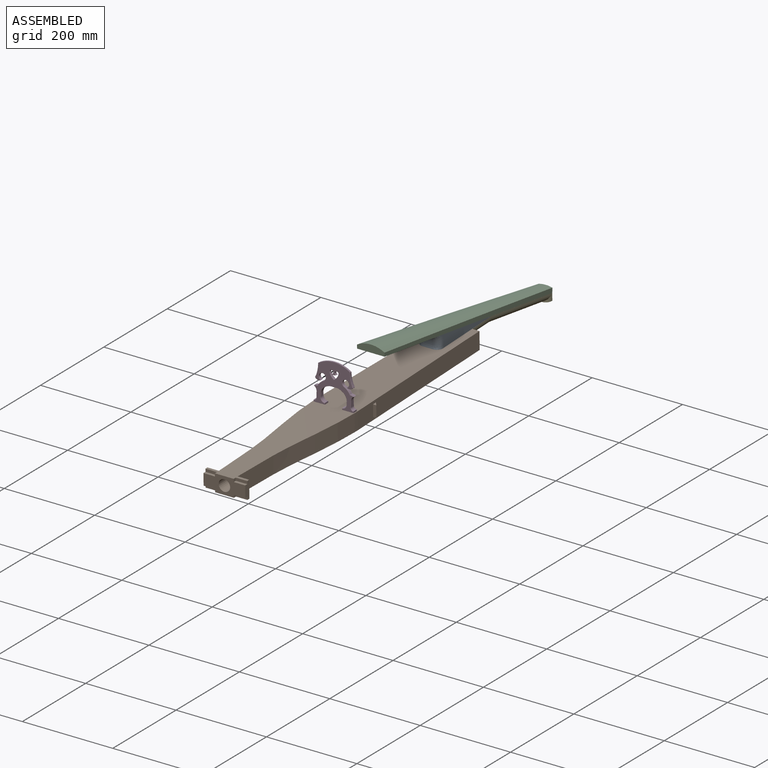
[diagram: assembled view]
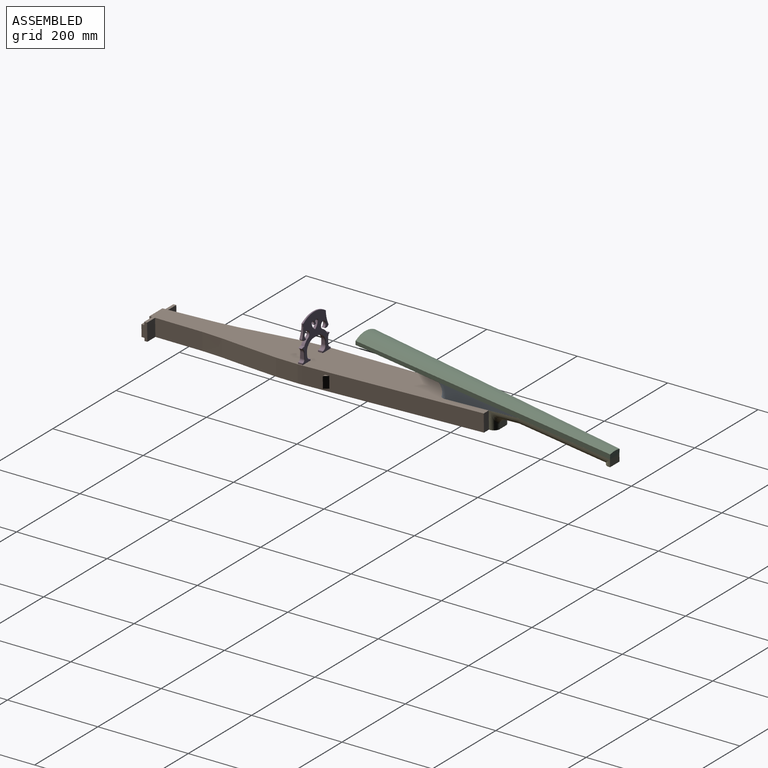
[diagram: assembled view, second angle]
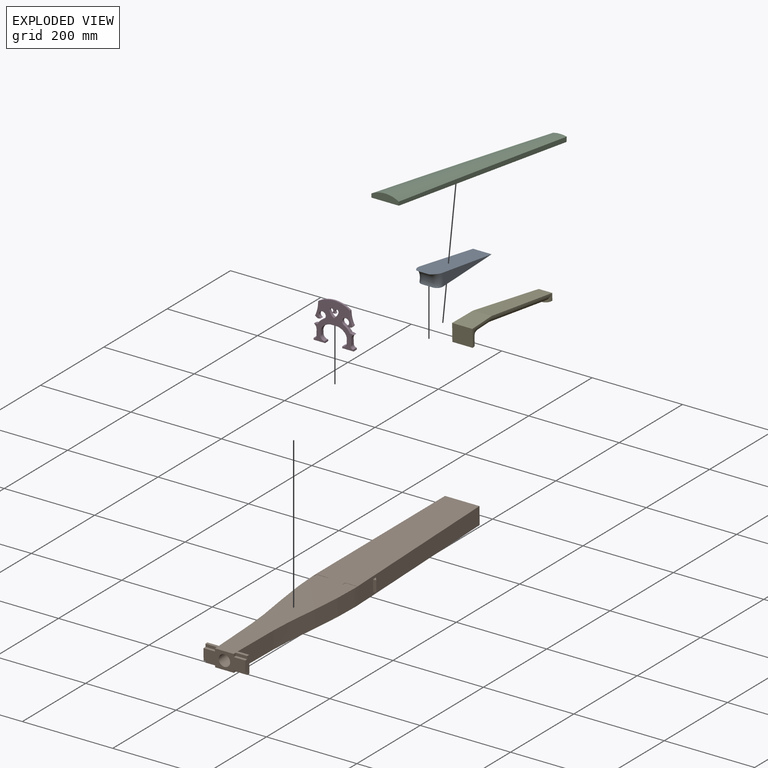
[diagram: exploded view]
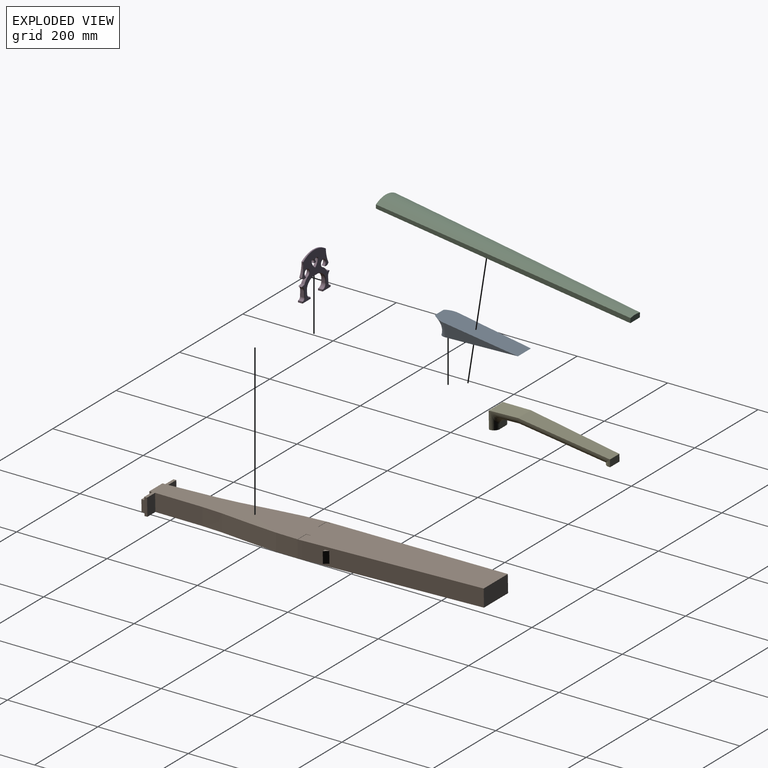
[diagram: exploded view, second angle]
ASSEMBLY  parts=5 mates=4
PART A: 7 faces, bbox 51.7x52.7x189.6 mm
  f0: plane 189.64x51.61mm, normal (-0.98,0,0.17), area 8567.6mm2, adj f1,f2,f3,f4,f5,f6
  f1: cylinder r=25.4mm len=33.08mm, axis (0,1,0), area 989.8mm2, adj f0,f2,f5,f6
  f2: plane 172.72x49.1mm, normal (1,0,0), area 7771.2mm2, adj f0,f1,f3,f4,f5,f6
  f3: plane 163.4x28.81mm, normal (0,-1,0.03), area 2235.9mm2, adj f0,f2,f6
  f4: plane 163.4x28.81mm, normal (0,1,0.03), area 2235.9mm2, adj f0,f2,f5
  f5: bspline ~49.62x29.64mm, area 707.5mm2, adj f0,f1,f2,f4
  f6: bspline ~49.62x29.64mm, area 707.5mm2, adj f0,f1,f2,f3
PART B: 52 faces, bbox 104.4x751.8x38.1 mm
  f0: plane 9.51x7.23mm, normal (0,0,1), area 33.4mm2, adj f2,f50,f51
  f1: plane 9.51x7.23mm, normal (0,0,-1), area 33.4mm2, adj f2,f50,f51
  f2: plane 396.66x38.1mm, normal (1,0.02,0), area 14874.3mm2, adj f0,f1,f3,f5,f6,f7,f23,f50
  f3: plane 751.81x92.38mm, normal (0,0,1), area 55855.2mm2, adj f2,f6,f8,f9,f10,f18,f19,f21
  f4: plane 37.85x9.53mm, normal (-1,0,0), area 360.5mm2, adj f7,f26,f41,f43
  f5: plane 37.85x9.53mm, normal (1,0,0), area 360.5mm2, adj f2,f7,f24,f37
  f6: plane 76.2x38.1mm, normal (0,1,0), area 2903.2mm2, adj f2,f3,f7,f43
  f7: plane 751.81x92.38mm, normal (0,0,-1), area 56339.5mm2, adj f2,f4,f5,f6,f8,f9,f10,f11
  f8: plane 38.1x12.7mm, normal (-1,0,0), area 403.2mm2, adj f3,f7,f9,f15,f16,f17,f19,f42
  f9: plane 92.38x38.1mm, normal (0,-1,0), area 2367.8mm2, adj f3,f7,f8,f10,f11,f12,f14,f15
  f10: plane 38.1x12.7mm, normal (1,0,0), area 403.2mm2, adj f3,f7,f9,f12,f13,f20,f22,f39
  f11: plane 6.35x6.35mm, normal (1,0,0), area 40.3mm2, adj f7,f9,f12,f13
  f12: plane 25.4x6.35mm, normal (0,0,-1), area 161.3mm2, adj f9,f10,f11,f13
  f13: plane 25.4x6.35mm, normal (0,-1,0), area 161.3mm2, adj f7,f10,f11,f12
  f14: plane 6.35x6.35mm, normal (-1,0,0), area 40.3mm2, adj f7,f9,f15,f16
  f15: plane 25.4x6.35mm, normal (0,0,-1), area 161.3mm2, adj f8,f9,f14,f16
  f16: plane 25.4x6.35mm, normal (0,-1,0), area 161.3mm2, adj f7,f8,f14,f15
  f17: plane 25.4x6.35mm, normal (0,0,1), area 161.3mm2, adj f8,f9,f18,f19
  f18: plane 6.35x6.35mm, normal (-1,0,0), area 40.3mm2, adj f3,f9,f17,f19
  f19: plane 25.4x6.35mm, normal (0,-1,0), area 161.3mm2, adj f3,f8,f17,f18
  f20: plane 25.4x6.35mm, normal (0,0,1), area 161.3mm2, adj f9,f10,f21,f22
  f21: plane 6.35x6.35mm, normal (1,0,0), area 40.3mm2, adj f3,f9,f20,f22
  f22: plane 25.4x6.35mm, normal (0,-1,0), area 161.3mm2, adj f3,f10,f20,f21
  f23: extruded ~9.53x0.25mm, area 2.4mm2, adj f2,f3,f24,f38
  f24: plane 9.53x0.07mm, normal (0,0,1), area 0.2mm2, adj f5,f23,f37
  f25: extruded ~9.53x0.25mm, area 2.4mm2, adj f3,f26,f40,f43
  f26: plane 9.53x0.07mm, normal (0,0,1), area 0.2mm2, adj f4,f25,f41
  f27: plane 25.4x0.51mm, normal (0,-1,0), area 12.9mm2, adj f3,f28,f30,f31
  f28: plane 9.53x0.51mm, normal (1,0,0), area 4.8mm2, adj f3,f27,f29,f31
  f29: plane 25.4x0.51mm, normal (0,1,0), area 12.9mm2, adj f3,f28,f30,f31
  f30: plane 9.53x0.51mm, normal (-1,0,0), area 4.8mm2, adj f3,f27,f29,f31
  f31: plane 25.4x9.53mm, normal (0,0,1), area 241.9mm2, adj f27,f28,f29,f30
  f32: plane 25.4x0.51mm, normal (0,-1,0), area 12.9mm2, adj f3,f33,f35,f36
  f33: plane 9.53x0.51mm, normal (1,0,0), area 4.8mm2, adj f3,f32,f34,f36
  f34: plane 25.4x0.51mm, normal (0,1,0), area 12.9mm2, adj f3,f33,f35,f36
  f35: plane 9.53x0.51mm, normal (-1,0,0), area 4.8mm2, adj f3,f32,f34,f36
  f36: plane 25.4x9.53mm, normal (0,0,1), area 241.9mm2, adj f32,f33,f34,f35
  f37: plane 37.85x0.07mm, normal (0,-1,0), area 2.7mm2, adj f5,f7,f24,f38
  f38: extruded ~332.93x38.1mm, area 12730.9mm2, adj f3,f7,f23,f37,f39
  f39: plane 38.1x25.4mm, normal (0,1,0), area 967.7mm2, adj f3,f7,f10,f38
  f40: extruded ~332.93x38.1mm, area 12730.9mm2, adj f3,f7,f25,f41,f42
  f41: plane 37.85x0.07mm, normal (0,-1,0), area 2.7mm2, adj f4,f7,f26,f40
  f42: plane 38.1x25.4mm, normal (0,1,0), area 967.7mm2, adj f3,f7,f8,f40
  f43: plane 396.66x38.1mm, normal (-1,0.02,0), area 14874.3mm2, adj f3,f4,f6,f7,f25,f44,f45,f46
  f44: plane 9.51x7.23mm, normal (0,0,1), area 33.4mm2, adj f43,f46,f47
  f45: plane 9.51x7.23mm, normal (0,0,-1), area 33.4mm2, adj f43,f46,f47
  f46: plane 25.4x7.03mm, normal (-0.02,-1,0), area 178.7mm2, adj f43,f44,f45,f47
  f47: plane 25.4x9.36mm, normal (-0.79,0.61,0), area 300.4mm2, adj f43,f44,f45,f46
  f48: cylinder r=12.7mm len=381mm, axis (0,-1,0), area 30402.4mm2, adj f9,f49
  f49: plane 25.4x25.4mm, normal (0,-1,0), area 506.7mm2, adj f48
  f50: plane 25.4x7.03mm, normal (0.02,-1,0), area 178.7mm2, adj f0,f1,f2,f51
  f51: plane 25.4x9.36mm, normal (0.79,0.61,0), area 300.4mm2, adj f0,f1,f2,f50
PART C: 6 faces, bbox 103.7x554.1x60.9 mm
  f0: plane 29.92x12.12mm, normal (0.05,1,0), area 344.4mm2, adj f1,f2,f4,f5
  f1: plane 551.92x87.42mm, normal (0.99,-0.16,0), area 25334.2mm2, adj f0,f2,f3,f5
  f2: plane 552.47x95.57mm, normal (0,0.03,-1), area 5338.7mm2, adj f0,f1,f3,f4
  f3: plane 60.89x16.31mm, normal (0,-1,0), area 831.6mm2, adj f1,f2,f4,f5
  f4: cylinder r=61.63mm len=554.09mm, axis (0.16,0.99,0), area 26128.8mm2, adj f0,f2,f3,f5
  f5: plane 552.47x95.57mm, normal (0,0.03,1), area 5338.7mm2, adj f0,f1,f3,f4
PART D: 127 faces, bbox 88.8x89.7x11.1 mm
  f0: plane 88.21x87.07mm, normal (0,0.04,-1), area 3511.7mm2, adj f4,f5,f6,f28,f30,f59,f60,f61
  f1: cylinder r=0.76mm len=12.55mm, axis (0,1,-0.04), area 15mm2, adj f22,f27,f37,f107
  f2: cylinder r=0.76mm len=3.87mm, axis (0,-1,0.04), area 3.9mm2, adj f3,f26,f27,f47,f48,f57
  f3: cylinder r=5.82mm len=9.32mm, axis (0,0,-1), area 86.4mm2, adj f2,f4,f26,f48,f57,f60,f93
  f4: bspline ~6.97x6.58mm, area 11.2mm2, adj f0,f3,f60,f70
  f5: bspline ~12.13x5.24mm, area 15.6mm2, adj f0,f33,f88,f89
  f6: bspline ~20.36x9.59mm, area 27.6mm2, adj f0,f35,f86,f87
  f7: bspline ~10.23x10.23mm, area 17.9mm2, adj f27,f31,f41,f77,f113
  f8: bspline ~0.62x0.36mm, area 0.1mm2, adj f29,f37,f115
  f9: bspline ~13.47x10.6mm, area 19.6mm2, adj f27,f38,f40,f108
  f10: bspline ~4.92x2.15mm, area 5.5mm2, adj f27,f38,f39,f109,f110
  f11: bspline ~9.06x8.92mm, area 22mm2, adj f27,f39,f40,f111
  f12: bspline ~12.13x5.24mm, area 15.6mm2, adj f27,f36,f41,f42
  f13: bspline ~20.36x9.59mm, area 27.6mm2, adj f27,f34,f43,f44
  f14: bspline ~10.23x10.23mm, area 17.9mm2, adj f23,f27,f45,f46,f92
  f15: bspline ~10.78x7mm, area 14.8mm2, adj f27,f49,f50,f94,f95
  f16: bspline ~13.84x13.51mm, area 21.8mm2, adj f27,f50,f51,f95,f96
  f17: bspline ~5.67x2.47mm, area 6.6mm2, adj f27,f51,f52,f97,f98
  f18: bspline ~30.05x6.95mm, area 36.3mm2, adj f27,f52,f53,f99,f100
  f19: bspline ~30.4x7.09mm, area 36.3mm2, adj f27,f53,f54,f100,f101
  f20: bspline ~5.67x2.47mm, area 6.6mm2, adj f27,f54,f55,f102,f103
  f21: bspline ~13.84x13.51mm, area 21.8mm2, adj f27,f55,f56,f104,f105
  f22: bspline ~10.78x7mm, area 14.8mm2, adj f1,f27,f56,f105,f106
  f23: bspline ~0.61x0.35mm, area 0.1mm2, adj f14,f46,f92
  f24: plane 25.28x9.52mm, normal (0,-1,0), area 240.7mm2, adj f25,f26,f47,f59
  f25: plane 9.59x3.8mm, normal (1,0,0), area 35.8mm2, adj f24,f46,f47,f59,f91,f92
  f26: plane 9.59x3.84mm, normal (-1,0,0), area 36.2mm2, adj f2,f3,f24,f47,f59,f60
  f27: plane 88.21x87.07mm, normal (0,0.04,1), area 3511.5mm2, adj f1,f2,f7,f9,f10,f11,f12,f13
  f28: cylinder r=0.76mm len=3.87mm, axis (0,-1,-0.04), area 3.9mm2, adj f0,f29,f72,f74,f75
  f29: cylinder r=5.82mm len=9.32mm, axis (0,0,-1), area 86.4mm2, adj f8,f28,f37,f74,f75,f107,f115
  f30: cylinder r=0.76mm len=6.3mm, axis (0,1,0.04), area 7.5mm2, adj f0,f86,f114,f116
  f31: cylinder r=0.76mm len=3.84mm, axis (0,-1,0.04), area 3.9mm2, adj f7,f27,f76,f77,f113,f118
  f32: plane 8.41x6.26mm, normal (1,0,0), area 51mm2, adj f33,f45,f89,f92
  f33: cylinder r=17.27mm len=11.58mm, axis (0,0,-1), area 93mm2, adj f5,f32,f34,f44
  f34: cylinder r=26.69mm len=19.8mm, axis (0,0,-1), area 142.5mm2, adj f13,f33,f58,f88
  f35: cylinder r=26.69mm len=19.8mm, axis (0,0,-1), area 142.5mm2, adj f6,f36,f42,f58
  f36: cylinder r=17.27mm len=11.58mm, axis (0,0,-1), area 93mm2, adj f12,f35,f86,f114
  f37: bspline ~6.58x6.58mm, area 11.2mm2, adj f1,f8,f27,f29,f115
  f38: bspline ~9.06x8.92mm, area 22mm2, adj f9,f10,f27,f109
  f39: bspline ~4.92x2.15mm, area 5.5mm2, adj f10,f11,f27,f110,f111
  f40: bspline ~13.47x10.6mm, area 19.6mm2, adj f9,f11,f27,f112
  f41: cylinder r=0.76mm len=6.3mm, axis (0,-1,0.04), area 7.5mm2, adj f7,f12,f27,f114
  f42: bspline ~20.36x9.59mm, area 27.6mm2, adj f12,f27,f35,f43
  f43: cylinder r=0.76mm len=9.1mm, axis (1,0,0), area 11.2mm2, adj f13,f27,f42,f58
  f44: bspline ~12.13x5.24mm, area 15.6mm2, adj f13,f27,f33,f45
  f45: cylinder r=0.76mm len=6.3mm, axis (0,1,-0.04), area 7.5mm2, adj f14,f27,f32,f44
  f46: cylinder r=0.76mm len=3.84mm, axis (0,1,-0.04), area 3.9mm2, adj f14,f23,f25,f27,f47,f92
  f47: cylinder r=0.76mm len=25.28mm, axis (-1,0,0), area 30.5mm2, adj f2,f24,f25,f26,f27,f46
  f48: bspline ~6.58x6.58mm, area 11.2mm2, adj f2,f3,f27,f49,f57
  f49: cylinder r=0.76mm len=12.55mm, axis (0,-1,0.04), area 15mm2, adj f15,f27,f48,f93
  f50: bspline ~8.99x2.68mm, area 9.5mm2, adj f15,f16,f27,f95
  f51: bspline ~16.28x15.86mm, area 49.6mm2, adj f16,f17,f27,f97
  f52: bspline ~8.03x4.64mm, area 10.9mm2, adj f17,f18,f27,f98,f99
  f53: bspline ~71.8x11.74mm, area 88.1mm2, adj f18,f19,f27,f100
  f54: bspline ~7.98x4.59mm, area 10.9mm2, adj f19,f20,f27,f101,f102
  f55: bspline ~16.28x15.86mm, area 49.6mm2, adj f20,f21,f27,f103
  f56: bspline ~8.99x2.68mm, area 9.5mm2, adj f21,f22,f27,f105
  f57: bspline ~0.62x0.36mm, area 0.1mm2, adj f2,f3,f48
  f58: plane 9.1x5.99mm, normal (0,-1,0), area 54.5mm2, adj f34,f35,f43,f87
  f59: cylinder r=0.76mm len=25.28mm, axis (-1,0,0), area 30.5mm2, adj f0,f24,f25,f26,f60,f91
  f60: cylinder r=0.76mm len=3.87mm, axis (0,1,0.04), area 3.9mm2, adj f0,f3,f4,f26,f59
  f61: bspline ~10.78x7mm, area 14.8mm2, adj f0,f85,f105,f106,f119
  f62: bspline ~1.06x0.76mm, area 0.9mm2, adj f0,f105,f119,f120
  f63: bspline ~15.47x8.14mm, area 24.8mm2, adj f0,f103,f120,f121
  f64: bspline ~13.81x4.68mm, area 17.5mm2, adj f0,f101,f102,f103,f121,f122
  f65: bspline ~35.9x11.74mm, area 44mm2, adj f0,f100,f122,f123
  f66: bspline ~30.05x6.95mm, area 36.3mm2, adj f0,f99,f100,f123,f124
  f67: bspline ~15.8x8.13mm, area 24.8mm2, adj f0,f97,f124,f125
  f68: bspline ~13.84x13.51mm, area 21.8mm2, adj f0,f95,f96,f125,f126
  f69: bspline ~7.88x2.67mm, area 8.5mm2, adj f0,f71,f95,f126
  f70: cylinder r=0.76mm len=12.55mm, axis (0,1,0.04), area 15mm2, adj f0,f4,f71,f93
  f71: bspline ~10.78x7mm, area 14.8mm2, adj f0,f69,f70,f94,f95
  f72: cylinder r=0.76mm len=25.28mm, axis (-1,0,0), area 30.5mm2, adj f0,f28,f73,f74,f117,f118
  f73: cylinder r=0.76mm len=3.84mm, axis (0,1,0.04), area 3.9mm2, adj f0,f72,f77,f116,f118
  f74: plane 9.59x3.84mm, normal (1,0,0), area 36.2mm2, adj f28,f29,f72,f76,f115,f117
  f75: bspline ~6.97x6.58mm, area 11.2mm2, adj f0,f28,f29,f85
  f76: cylinder r=0.76mm len=25.28mm, axis (-1,0,0), area 30.5mm2, adj f27,f31,f74,f115,f117,f118
  f77: cylinder r=9.46mm len=9.8mm, axis (0,0,-1), area 136.7mm2, adj f7,f31,f73,f113,f114,f116,f118
  f78: bspline ~13.47x10.6mm, area 19.6mm2, adj f0,f79,f84,f112
  f79: bspline ~5.68x4.52mm, area 9mm2, adj f0,f78,f80,f111
  f80: bspline ~8.89x4.52mm, area 13mm2, adj f0,f79,f81,f111
  f81: bspline ~9.75x2.13mm, area 11mm2, adj f0,f80,f82,f109,f110,f111
  f82: bspline ~8.87x4.52mm, area 13mm2, adj f0,f81,f83,f109
  f83: bspline ~5.68x4.52mm, area 9mm2, adj f0,f82,f84,f109
  f84: bspline ~13.55x10.68mm, area 19.6mm2, adj f0,f78,f83,f108
  f85: cylinder r=0.76mm len=12.55mm, axis (0,-1,-0.04), area 15mm2, adj f0,f61,f75,f107
  f86: bspline ~12.13x5.24mm, area 15.6mm2, adj f0,f6,f30,f36
  f87: cylinder r=0.76mm len=9.1mm, axis (-1,0,0), area 11.2mm2, adj f0,f6,f58,f88
  f88: bspline ~20.36x9.59mm, area 27.6mm2, adj f0,f5,f34,f87
  f89: cylinder r=0.76mm len=6.3mm, axis (0,-1,-0.04), area 7.5mm2, adj f0,f5,f32,f90
  f90: bspline ~10.58x10.23mm, area 18mm2, adj f0,f89,f91,f92
  f91: cylinder r=0.76mm len=3.84mm, axis (0,-1,-0.04), area 3.9mm2, adj f0,f25,f59,f90,f92
  f92: cylinder r=9.46mm len=9.8mm, axis (0,0,-1), area 136.7mm2, adj f14,f23,f25,f32,f46,f90,f91
  f93: plane 12.52x8.73mm, normal (-1,0,0), area 102.4mm2, adj f3,f49,f70,f94
  f94: cylinder r=11.25mm len=10.04mm, axis (0,0,-1), area 88.6mm2, adj f15,f71,f93,f95
  f95: cylinder r=16.27mm len=8.39mm, axis (0,0,-1), area 58.3mm2, adj f15,f16,f50,f68,f69,f71,f94,f96
  f96: cylinder r=29.09mm len=13.23mm, axis (0,0,-1), area 112.6mm2, adj f16,f68,f95,f97
  f97: cylinder r=7.37mm len=14.73mm, axis (0,0,-1), area 192.1mm2, adj f17,f51,f67,f96,f98,f124,f125
  f98: cylinder r=9.79mm len=13.65mm, axis (0,0,-1), area 82.6mm2, adj f17,f52,f97,f99,f124
  f99: cylinder r=61.09mm len=29.68mm, axis (0,0,-1), area 121.7mm2, adj f18,f52,f66,f98,f100,f124
  f100: cylinder r=63.37mm len=71.8mm, axis (0,0,-1), area 156.2mm2, adj f18,f19,f53,f65,f66,f99,f101,f122
  f101: cylinder r=61.09mm len=29.68mm, axis (0,0,-1), area 122mm2, adj f19,f54,f64,f100,f102,f122
  f102: cylinder r=9.79mm len=13.65mm, axis (0,0,-1), area 82.6mm2, adj f20,f54,f64,f101,f103
  f103: cylinder r=7.37mm len=14.73mm, axis (0,0,-1), area 192.1mm2, adj f20,f55,f63,f64,f102,f104,f121
  f104: cylinder r=29.09mm len=13.23mm, axis (0,0,-1), area 112.6mm2, adj f21,f103,f105,f120
  f105: cylinder r=16.27mm len=8.39mm, axis (0,0,-1), area 58.3mm2, adj f21,f22,f56,f61,f62,f104,f106,f119
  f106: cylinder r=11.25mm len=10.04mm, axis (0,0,-1), area 88.6mm2, adj f22,f61,f105,f107
  f107: plane 12.52x8.73mm, normal (1,0,0), area 102.4mm2, adj f1,f29,f85,f106
  f108: cylinder r=21.04mm len=12.62mm, axis (0,0,-1), area 67.9mm2, adj f9,f84,f109,f112
  f109: cylinder r=3.75mm len=7.51mm, axis (0,0,-1), area 60.3mm2, adj f10,f38,f81,f82,f83,f108,f110
  f110: cylinder r=8.88mm len=9.75mm, axis (0,0,-1), area 39.4mm2, adj f10,f39,f81,f109,f111
  f111: cylinder r=3.75mm len=7.51mm, axis (0,0,-1), area 60.3mm2, adj f11,f39,f79,f80,f81,f110,f112
  f112: cylinder r=21.04mm len=12.62mm, axis (0,0,-1), area 67.9mm2, adj f40,f78,f108,f111
  f113: bspline ~0.61x0.35mm, area 0.1mm2, adj f7,f31,f77
  f114: plane 8.41x6.26mm, normal (-1,0,0), area 51mm2, adj f30,f36,f41,f77
  f115: cylinder r=0.76mm len=3.87mm, axis (0,1,-0.04), area 3.9mm2, adj f8,f27,f29,f37,f74,f76
  f116: bspline ~10.58x10.23mm, area 18mm2, adj f0,f30,f73,f77
  f117: plane 25.28x9.52mm, normal (0,-1,0), area 240.7mm2, adj f72,f74,f76,f118
  f118: plane 9.59x3.8mm, normal (-1,0,0), area 35.8mm2, adj f31,f72,f73,f76,f77,f117
  f119: bspline ~7.88x2.67mm, area 8.5mm2, adj f0,f61,f62,f105
  f120: bspline ~13.84x13.51mm, area 21.8mm2, adj f0,f62,f63,f104,f105
  f121: bspline ~15.8x8.13mm, area 24.8mm2, adj f0,f63,f64,f103
  f122: bspline ~30.05x6.95mm, area 36.3mm2, adj f0,f64,f65,f100,f101
  f123: bspline ~35.9x11.74mm, area 44mm2, adj f0,f65,f66,f100
  f124: bspline ~13.81x4.68mm, area 17.6mm2, adj f0,f66,f67,f97,f98,f99
  f125: bspline ~15.47x8.14mm, area 24.8mm2, adj f0,f67,f68,f97
  f126: bspline ~1.06x0.76mm, area 0.9mm2, adj f0,f68,f69,f95
PART E: 54 faces, bbox 50.9x45.2x263 mm
  f0: plane 1.3x0.23mm, normal (0.17,0,0.98), area 0.1mm2, adj f2,f8,f26,f53
  f1: plane 185.11x32.64mm, normal (0.98,0,-0.17), area 1984.5mm2, adj f2,f4,f5,f38,f49,f51,f52,f53
  f2: cylinder r=12.62mm len=197.79mm, axis (0.17,-0.03,0.98), area 3807.2mm2, adj f0,f1,f8,f48,f53
  f3: plane 1.75x0.13mm, normal (0,0,1), area 0mm2, adj f5,f8,f29,f48
  f4: plane 34.23x17.72mm, normal (1,0,0), area 573.4mm2, adj f1,f5,f38,f42
  f5: cylinder r=12.7mm len=58.77mm, axis (0,-0.03,1), area 854.8mm2, adj f1,f3,f4,f20,f28,f29,f40,f41
  f6: plane 29.87x15.24mm, normal (1,0,0), area 386mm2, adj f7,f23,f27,f51,f52,f53
  f7: plane 29.87x15.39mm, normal (0,0,1), area 459.8mm2, adj f6,f12,f23,f27
  f8: plane 199.46x37.3mm, normal (0,1,0.03), area 523.3mm2, adj f0,f2,f3,f11,f12,f25,f26,f29
  f9: plane 199.46x37.3mm, normal (0,-1,0.03), area 523.3mm2, adj f12,f17,f22,f24,f30,f47,f49,f50
  f10: plane 63.5x44.7mm, normal (-1,0,0), area 2725mm2, adj f12,f15,f18,f20
  f11: plane 2.54x0.45mm, normal (0.17,0,0.98), area 0mm2, adj f8,f20,f28
  f12: plane 199.01x41.12mm, normal (-0.98,0,0.17), area 7173.2mm2, adj f7,f8,f9,f10
  f13: plane 25.4x2.54mm, normal (0,-1,0), area 64.5mm2, adj f15,f16,f19,f39
  f14: plane 25.4x2.54mm, normal (0,1,0), area 64.5mm2, adj f15,f16,f21,f37
  f15: plane 44.7x38.1mm, normal (0,0,-1), area 1703.2mm2, adj f10,f13,f14,f16,f18,f20
  f16: plane 44.7x15.24mm, normal (1,0,0), area 612.1mm2, adj f13,f14,f15,f36,f37,f39
  f17: plane 2.54x0.45mm, normal (0.17,0,0.98), area 0mm2, adj f9,f18,f31
  f18: plane 63.96x15.7mm, normal (0,-1,0.03), area 209.1mm2, adj f10,f15,f17,f19,f34,f35,f38,f39
  f19: plane 3.89x0.07mm, normal (-1,0,0), area 0.2mm2, adj f13,f18,f35,f39
  f20: plane 63.96x15.7mm, normal (0,1,0.03), area 209.1mm2, adj f5,f10,f11,f15,f21,f32,f33,f37
  f21: plane 3.89x0.07mm, normal (-1,0,0), area 0.2mm2, adj f14,f20,f33,f37
  f22: plane 2.13x0.07mm, normal (0,0,1), area 0.1mm2, adj f9,f23,f24,f47
  f23: plane 15.39x2.54mm, normal (0,-1,0), area 39.1mm2, adj f6,f7,f22,f24,f52
  f24: plane 2.54x0.07mm, normal (1,0,0), area 0.1mm2, adj f9,f22,f23
  f25: plane 2.54x0.07mm, normal (1,0,0), area 0.1mm2, adj f8,f26,f27
  f26: plane 2.13x0.07mm, normal (0,0,1), area 0.1mm2, adj f0,f8,f25,f27
  f27: plane 15.39x2.54mm, normal (0,1,0), area 39.1mm2, adj f6,f7,f25,f26,f53
  f28: plane 0.57x0.01mm, normal (0,0,1), area 0mm2, adj f5,f11,f29
  f29: plane 0.57x0.23mm, normal (0,1,0.03), area 0.1mm2, adj f3,f5,f8,f28
  f30: plane 0.58x0.24mm, normal (0,-1,0.03), area 0.1mm2, adj f9,f31,f38,f50
  f31: plane 0.57x0.01mm, normal (0,0,1), area 0mm2, adj f17,f30,f38
  f32: plane 1.75x0.05mm, normal (-1,0,0), area 0mm2, adj f20,f33,f37
  f33: plane 2.54x1.35mm, normal (0,-1,0), area 3.4mm2, adj f20,f21,f32,f37
  f34: plane 1.75x0.05mm, normal (-1,0,0), area 0mm2, adj f18,f35,f39
  f35: plane 2.54x1.35mm, normal (0,1,0), area 3.4mm2, adj f18,f19,f34,f39
  f36: plane 19.3x10.17mm, normal (0,0,1), area 196.1mm2, adj f16,f37,f39,f41,f42,f43
  f37: cylinder r=12.7mm len=33.59mm, axis (-1,0,0), area 381.2mm2, adj f14,f16,f20,f21,f32,f33,f36,f40
  f38: cylinder r=12.7mm len=58.89mm, axis (0,-0.03,-1), area 854.9mm2, adj f1,f4,f18,f30,f31,f43,f44,f46
  f39: cylinder r=12.7mm len=33.59mm, axis (1,0,0), area 381.2mm2, adj f13,f16,f18,f19,f34,f35,f36,f44
  f40: bspline ~25.9x24.05mm, area 298.1mm2, adj f5,f20,f37,f41
  f41: bspline ~12.71x12.7mm, area 10.8mm2, adj f5,f36,f40,f42
  f42: cylinder r=12.7mm len=17.72mm, axis (0,1,0), area 353.5mm2, adj f4,f36,f41,f43
  f43: bspline ~12.71x12.7mm, area 10.8mm2, adj f36,f38,f42,f44
  f44: bspline ~25.9x24.05mm, area 298.1mm2, adj f18,f38,f39,f43
  f45: plane 10.28x10.25mm, normal (-0.17,0,-0.98), area 0.2mm2, adj f5,f48
  f46: plane 10.28x10.25mm, normal (-0.17,0,-0.98), area 0.2mm2, adj f38,f50
  f47: plane 1.3x0.23mm, normal (0.17,0,0.98), area 0.1mm2, adj f9,f22,f49,f52
  f48: bspline ~12.71x12.57mm, area 24.4mm2, adj f2,f3,f5,f8,f45
  f49: cylinder r=12.62mm len=197.79mm, axis (-0.17,-0.03,-0.98), area 3807.2mm2, adj f1,f9,f47,f50,f52
  f50: bspline ~12.8x12.69mm, area 24.6mm2, adj f9,f30,f38,f46,f49
  f51: plane 4.47x2.6mm, normal (0,0,-1), area 11.6mm2, adj f1,f6,f52,f53
  f52: cylinder r=12.7mm len=13.26mm, axis (-1,0,0), area 122.6mm2, adj f1,f6,f23,f47,f49,f51
  f53: cylinder r=12.7mm len=13.26mm, axis (1,0,0), area 122.6mm2, adj f0,f1,f2,f6,f27,f51
PLACE A rot(axis=(-0.57,0.57,0.58),119.4deg) t=(167.21,405.65,318.97)mm
PLACE B rot(axis=(1,0,0),1deg) t=(146.42,-236.18,269.66)mm
PLACE C rot(axis=(0,1,0),90deg) t=(192.61,-421.65,5250.99)mm
PLACE D rot(axis=(1,0,0),91deg) t=(192.66,112.81,353.25)mm
PLACE E rot(axis=(-0.57,0.57,0.58),119.4deg) t=(170.26,514.85,320.87)mm
MATE fastened E.f12 <-> C.f1  axis (0,0.16,0.99) through (192.61,777.94,290.37)mm
MATE fastened E.f15 <-> B.f48  axis (0,-1,-0.02) through (192.61,515.19,301.82)mm
MATE fastened B.f36 <-> D.f24  axis (0,-0.02,1) through (161.01,113.5,313.36)mm
MATE fastened E.f10 <-> A.f2  axis (0,-0.02,1) through (172.05,578.34,321.98)mm
